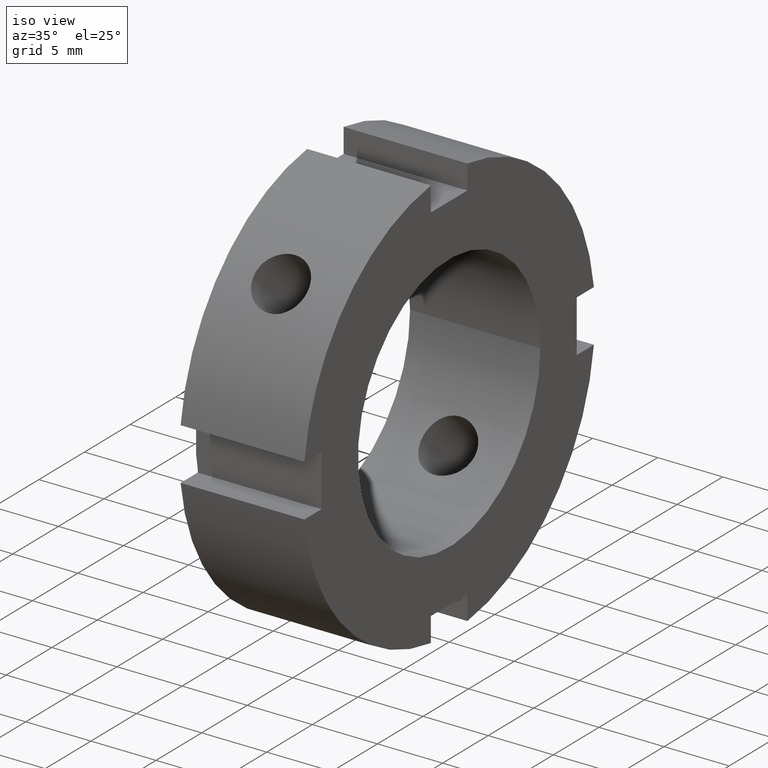
[diagram: clean part render]
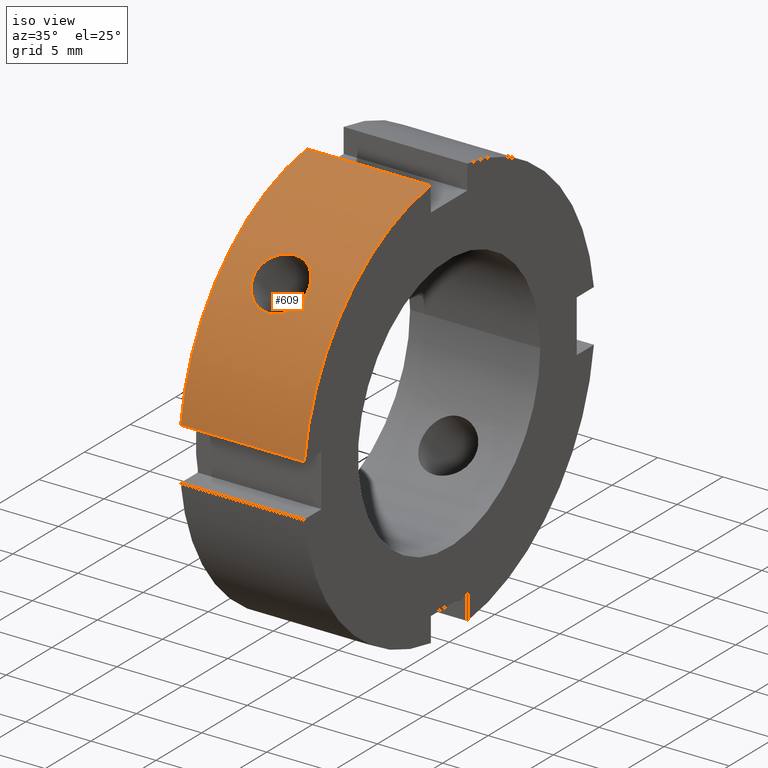
[diagram: same view with one face highlighted and labeled with its STEP entity id]
A machine part, iso view. The second image highlights one B-rep face of the part: STEP entity #609.
In plain terms, the highlighted cylindrical surface (partial cylindrical patch) has radius 16 mm, axis along (1, 0, 0).
Its self-contained STEP definition (entity closure, byte-faithful):
#73=CARTESIAN_POINT('',(4.999999999999996,-12.680491423207750,9.757311989782565));
#74=VERTEX_POINT('',#73);
#75=CARTESIAN_POINT('',(4.999999999999996,-12.680491423207744,9.757311989782568));
#76=CARTESIAN_POINT('',(4.740149585372764,-12.680491423207744,9.757311989782568));
#77=CARTESIAN_POINT('',(4.463179605627341,-12.648708251469333,9.799054770138575));
#78=CARTESIAN_POINT('',(3.954000827178291,-12.517421276935609,9.966215897361636));
#79=CARTESIAN_POINT('',(3.721766945306060,-12.417664145266954,10.091358667088722));
#80=CARTESIAN_POINT('',(3.355055370607368,-12.182146634375094,10.374449638614944));
#81=CARTESIAN_POINT('',(3.196025754255246,-12.030578388668566,10.551310772439791));
#82=CARTESIAN_POINT('',(2.984990073865271,-11.688363594290369,10.929187154960021));
#83=CARTESIAN_POINT('',(2.932999999999997,-11.497448736246906,11.129968261722606));
#84=CARTESIAN_POINT('',(2.932999999999997,-11.129968261722599,11.497448736246913));
#85=CARTESIAN_POINT('',(2.984990073865271,-10.929187154960010,11.688363594290379));
#86=CARTESIAN_POINT('',(3.196025754255245,-10.551310772439781,12.030578388668573));
#87=CARTESIAN_POINT('',(3.355055370607368,-10.374449638614941,12.182146634375099));
#88=CARTESIAN_POINT('',(3.721766945306059,-10.091358667088715,12.417664145266958));
#89=CARTESIAN_POINT('',(3.954000827178287,-9.966215897361630,12.517421276935618));
#90=CARTESIAN_POINT('',(4.463179605627338,-9.799054770138566,12.648708251469342));
#91=CARTESIAN_POINT('',(4.740149585372765,-9.757311989782558,12.680491423207751));
#92=CARTESIAN_POINT('',(5.259850414627229,-9.757311989782558,12.680491423207750));
#93=CARTESIAN_POINT('',(5.536820394372654,-9.799054770138566,12.648708251469341));
#94=CARTESIAN_POINT('',(6.045999172821706,-9.966215897361629,12.517421276935616));
#95=CARTESIAN_POINT('',(6.278233054693935,-10.091358667088715,12.417664145266958));
#96=CARTESIAN_POINT('',(6.644944629392626,-10.374449638614941,12.182146634375099));
#97=CARTESIAN_POINT('',(6.803974245744749,-10.551310772439781,12.030578388668573));
#98=CARTESIAN_POINT('',(7.015009926134722,-10.929187154960010,11.688363594290379));
#99=CARTESIAN_POINT('',(7.066999999999997,-11.129968261722599,11.497448736246913));
#100=CARTESIAN_POINT('',(7.066999999999997,-11.497448736246906,11.129968261722606));
#101=CARTESIAN_POINT('',(7.015009926134724,-11.688363594290369,10.929187154960021));
#102=CARTESIAN_POINT('',(6.803974245744748,-12.030578388668566,10.551310772439791));
#103=CARTESIAN_POINT('',(6.644944629392626,-12.182146634375094,10.374449638614944));
#104=CARTESIAN_POINT('',(6.278233054693935,-12.417664145266954,10.091358667088720));
#105=CARTESIAN_POINT('',(6.045999172821704,-12.517421276935609,9.966215897361636));
#106=CARTESIAN_POINT('',(5.536820394372652,-12.648708251469333,9.799054770138575));
#107=CARTESIAN_POINT('',(5.259850414627230,-12.680491423207744,9.757311989782568));
#108=CARTESIAN_POINT('',(4.999999999999998,-12.680491423207744,9.757311989782568));
#109=B_SPLINE_CURVE_WITH_KNOTS('',3,(#75,#76,#77,#78,#79,#80,#81,#82,#83,#84,#85,#86,#87,#88,#89,#90,#91,#92,#93,#94,#95,#96,#97,#98,#99,#100,#101,#102,#103,#104,#105,#106,#107,#108),.UNSPECIFIED.,.T.,.U.,(4,2,2,2,2,2,2,2,2,2,2,2,2,2,2,2,4),(0.0,0.077955124388169,0.155910248776339,0.233864629423276,0.311819010070212,0.389773390717149,0.467727771364085,0.545682895752255,0.623638020140424,0.701593144528594,0.779548268916763,0.857502649563700,0.935457030210636,1.013411410857573,1.091365791504510,1.169320915892679,1.247276040280849),.UNSPECIFIED.);
#110=EDGE_CURVE('',#74,#74,#109,.T.);
#353=CARTESIAN_POINT('',(0.499999999999998,-15.874507866387539,2.000000000000002));
#354=VERTEX_POINT('',#353);
#369=CARTESIAN_POINT('',(9.999999999999996,-15.874507866387539,2.000000000000002));
#370=VERTEX_POINT('',#369);
#377=CARTESIAN_POINT('',(0.499999999999998,-15.874507866387539,2.000000000000001));
#378=DIRECTION('',(1.0,0.0,0.0));
#379=VECTOR('',#378,9.499999999999996);
#380=LINE('',#377,#379);
#381=EDGE_CURVE('',#354,#370,#380,.T.);
#493=CARTESIAN_POINT('',(0.499999999999998,-1.999999999999998,15.874507866387539));
#494=VERTEX_POINT('',#493);
#503=CARTESIAN_POINT('',(9.999999999999996,-1.999999999999998,15.874507866387539));
#504=VERTEX_POINT('',#503);
#505=CARTESIAN_POINT('',(9.999999999999995,-1.999999999999999,15.874507866387539));
#506=DIRECTION('',(-1.0,0.0,0.0));
#507=VECTOR('',#506,9.499999999999996);
#508=LINE('',#505,#507);
#509=EDGE_CURVE('',#504,#494,#508,.T.);
#583=CARTESIAN_POINT('',(5.249999999999996,0.0,0.0));
#584=DIRECTION('',(1.0,0.0,0.0));
#585=DIRECTION('',(0.0,1.0,0.0));
#586=AXIS2_PLACEMENT_3D('',#583,#584,#585);
#587=CYLINDRICAL_SURFACE('',#586,15.999999999999996);
#588=ORIENTED_EDGE('',*,*,#381,.T.);
#589=CARTESIAN_POINT('',(9.999999999999996,0.0,0.0));
#590=DIRECTION('',(1.0,0.0,0.0));
#591=DIRECTION('',(0.0,1.0,0.0));
#592=AXIS2_PLACEMENT_3D('',#589,#590,#591);
#593=CIRCLE('',#592,15.999999999999998);
#594=EDGE_CURVE('',#504,#370,#593,.T.);
#595=ORIENTED_EDGE('',*,*,#594,.F.);
#596=ORIENTED_EDGE('',*,*,#509,.T.);
#597=CARTESIAN_POINT('',(0.499999999999998,0.0,0.0));
#598=DIRECTION('',(1.0,0.0,0.0));
#599=DIRECTION('',(0.0,1.0,0.0));
#600=AXIS2_PLACEMENT_3D('',#597,#598,#599);
#601=CIRCLE('',#600,15.999999999999996);
#602=EDGE_CURVE('',#494,#354,#601,.T.);
#603=ORIENTED_EDGE('',*,*,#602,.T.);
#604=EDGE_LOOP('',(#588,#595,#596,#603));
#605=FACE_OUTER_BOUND('',#604,.T.);
#606=ORIENTED_EDGE('',*,*,#110,.T.);
#607=EDGE_LOOP('',(#606));
#608=FACE_BOUND('',#607,.T.);
#609=ADVANCED_FACE('',(#605,#608),#587,.T.);